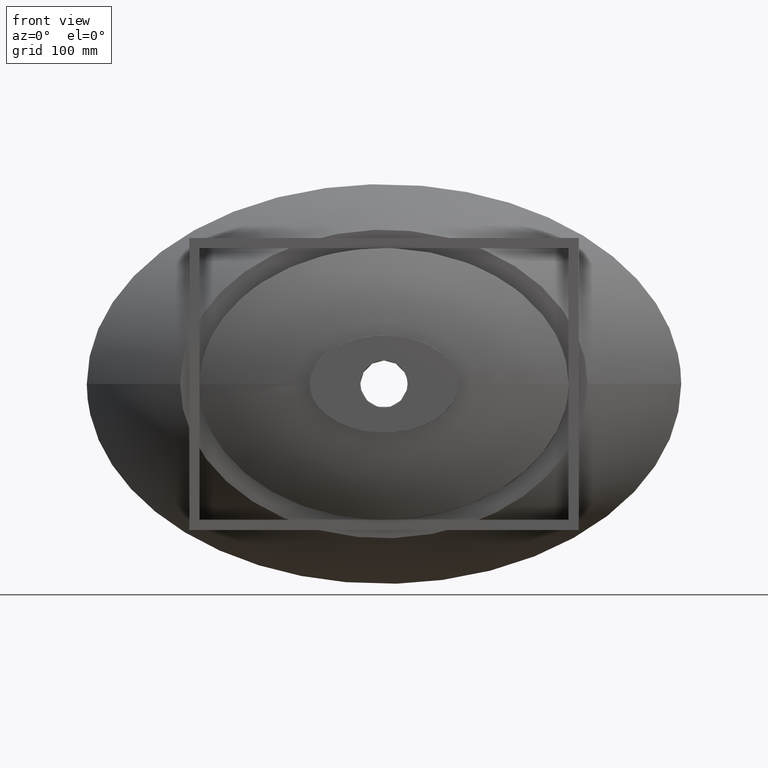
[diagram: clean part render]
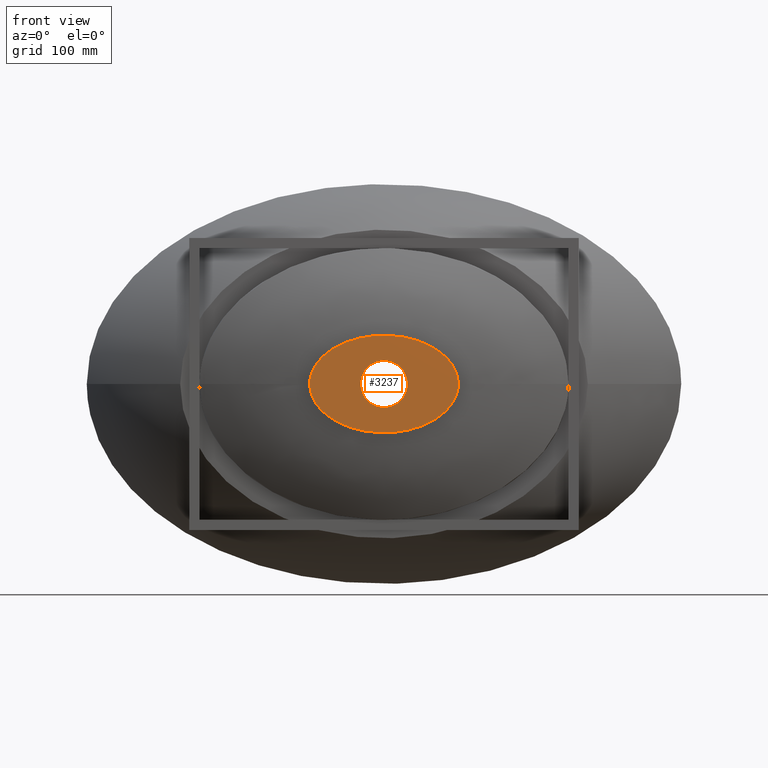
[diagram: same view with one face highlighted and labeled with its STEP entity id]
A machine part, front view. The second image highlights one B-rep face of the part: STEP entity #3237.
In plain terms, the highlighted planar face has unit normal (0, -1, 0).
Its self-contained STEP definition (entity closure, byte-faithful):
#157 = FACE_BOUND ( 'NONE', #1051, .T. ) ;
#325 = VERTEX_POINT ( 'NONE', #3638 ) ;
#419 = DIRECTION ( 'NONE',  ( -1.000000000000000000, -5.607186993056346800E-016, 4.763918636678732000E-017 ) ) ;
#421 = PLANE ( 'NONE',  #1300 ) ;
#432 = CARTESIAN_POINT ( 'NONE',  ( -23.00000000000000000, -144.9999999999999700, -6.586528197849439400E-015 ) ) ;
#454 = DIRECTION ( 'NONE',  ( 5.607186993056346800E-016, -1.000000000000000000, 0.0000000000000000000 ) ) ;
#526 = VERTEX_POINT ( 'NONE', #3667 ) ;
#697 = EDGE_CURVE ( 'NONE', #325, #917, #2055, .T. ) ;
#765 = VERTEX_POINT ( 'NONE', #2791 ) ;
#917 = VERTEX_POINT ( 'NONE', #2893 ) ;
#941 = B_SPLINE_CURVE_WITH_KNOTS ( 'NONE', 3,
 ( #2860, #2836, #2823, #2821, #2818, #2813, #2809, #2806, #2803, #2800, #2797, #2792, #2790, #2787, #2784, #2781, #2776 ),
 .UNSPECIFIED., .F., .F.,
 ( 4, 1, 1, 1, 1, 1, 1, 1, 1, 1, 1, 1, 1, 1, 4 ),
 ( 0.5000000000000008900, 0.5416666666647502700, 0.5833333333315911000, 0.6249999999984320300, 0.6666666666652729700, 0.7083333333321136800, 0.7499999999999285000, 0.7916666666657955500, 0.8333333333326364800, 0.8749999999994773100, 0.9166666666663181300, 0.9583333333331591800, 0.9916666666666318400, 0.9937499999999739300, 1.000000000000000000 ),
 .UNSPECIFIED. ) ;
#944 = EDGE_CURVE ( 'NONE', #526, #765, #2669, .T. ) ;
#1051 = EDGE_LOOP ( 'NONE', ( #1983, #1254 ) ) ;
#1254 = ORIENTED_EDGE ( 'NONE', *, *, #2126, .F. ) ;
#1300 = AXIS2_PLACEMENT_3D ( 'NONE', #432, #454, #419 ) ;
#1685 = CARTESIAN_POINT ( 'NONE',  ( -72.50000000000000000, -145.0000000000000000, 0.6250504549477627900 ) ) ;
#1824 = ORIENTED_EDGE ( 'NONE', *, *, #1934, .T. ) ;
#1934 = EDGE_CURVE ( 'NONE', #917, #325, #2808, .T. ) ;
#1983 = ORIENTED_EDGE ( 'NONE', *, *, #944, .F. ) ;
#2023 = CARTESIAN_POINT ( 'NONE',  ( -72.47446810728392600, -145.0000000000000000, 1.458451061544785200 ) ) ;
#2025 = CARTESIAN_POINT ( 'NONE',  ( -72.50000000000000000, -145.0000000000000000, -4.228388472693467300E-015 ) ) ;
#2055 = B_SPLINE_CURVE_WITH_KNOTS ( 'NONE', 3,
 ( #3016, #3025, #3039, #2956, #2952, #3040, #2951, #2948, #2945, #2943, #2939, #2926, #2932, #2911, #2906, #2931, #2905 ),
 .UNSPECIFIED., .F., .F.,
 ( 4, 1, 1, 1, 1, 1, 1, 1, 1, 1, 1, 1, 1, 1, 4 ),
 ( 0.0000000000000000000, 0.006249999999973968200, 0.008333333333298475700, 0.04166666666649249100, 0.08333333333298509300, 0.1249999999994777000, 0.1666666666659700800, 0.2083333333324626800, 0.2499999999989551700, 0.2916666666654476600, 0.3333333333319402600, 0.3749999999984328100, 0.4166666666649252400, 0.4583333333314178500, 0.5000000000000018900 ),
 .UNSPECIFIED. ) ;
#2087 = CARTESIAN_POINT ( 'NONE',  ( -72.17867248968364900, -145.0000000000000000, 5.620241344210579200 ) ) ;
#2091 = CARTESIAN_POINT ( 'NONE',  ( -63.55359882152487900, -145.0000000000000000, 23.95946813404481900 ) ) ;
#2096 = CARTESIAN_POINT ( 'NONE',  ( -51.86703411855976500, -144.9999999999999700, 33.98184993974604900 ) ) ;
#2105 = CARTESIAN_POINT ( 'NONE',  ( -70.31492215243578400, -144.9999999999999700, 13.26490636796133100 ) ) ;
#2111 = CARTESIAN_POINT ( 'NONE',  ( -36.56971452038421700, -144.9999999999999700, 41.63856474513698900 ) ) ;
#2126 = EDGE_CURVE ( 'NONE', #765, #526, #941, .T. ) ;
#2190 = CARTESIAN_POINT ( 'NONE',  ( -4.985635927538811800E-015, -145.0000000000000300, 48.05759305931623300 ) ) ;
#2228 = CARTESIAN_POINT ( 'NONE',  ( -19.08048757208981900, -144.9999999999999700, 46.38481388136756300 ) ) ;
#2231 = CARTESIAN_POINT ( 'NONE',  ( 51.86703411855974400, -145.0000000000000000, 33.98184993974606300 ) ) ;
#2244 = CARTESIAN_POINT ( 'NONE',  ( 72.49999999999998600, -144.9999999999999700, -2.003483254611170500E-010 ) ) ;
#2247 = CARTESIAN_POINT ( 'NONE',  ( 36.56971452038421000, -145.0000000000000000, 41.63856474513701000 ) ) ;
#2256 = CARTESIAN_POINT ( 'NONE',  ( 63.55359882152489300, -145.0000000000000000, 23.95946813404481500 ) ) ;
#2263 = CARTESIAN_POINT ( 'NONE',  ( 19.08048757208978700, -145.0000000000000000, 46.38481388136754200 ) ) ;
#2296 = CARTESIAN_POINT ( 'NONE',  ( 70.79787381905050800, -144.9999999999999400, 12.50100909876383800 ) ) ;
#2519 = CARTESIAN_POINT ( 'NONE',  ( 72.50000000004261800, -144.9999999999999700, 4.167003032776340100 ) ) ;
#2669 = B_SPLINE_CURVE_WITH_KNOTS ( 'NONE', 3,
 ( #2770, #2766, #2764, #2763, #2760, #2759, #2754, #2753, #2742, #2729, #2726, #2721, #2719, #2714, #2712, #2708, #2706 ),
 .UNSPECIFIED., .F., .F.,
 ( 4, 1, 1, 1, 1, 1, 1, 1, 1, 1, 1, 1, 1, 1, 4 ),
 ( 0.0000000000000000000, 0.006249999999973956100, 0.008333333333298460100, 0.04166666666649240800, 0.08333333333298492700, 0.1249999999994774500, 0.1666666666659697400, 0.2083333333324622600, 0.2499999999989546700, 0.2916666666654470500, 0.3333333333319396000, 0.3749999999984320300, 0.4166666666649244100, 0.4583333333314169600, 0.5000000000000008900 ),
 .UNSPECIFIED. ) ;
#2706 = CARTESIAN_POINT ( 'NONE',  ( 23.00000000000001400, -145.0000000000000300, -1.022849428229522600E-010 ) ) ;
#2708 = CARTESIAN_POINT ( 'NONE',  ( 22.99999999998553000, -145.0000000000000300, -2.039132844023420400 ) ) ;
#2712 = CARTESIAN_POINT ( 'NONE',  ( 22.42234419969895500, -145.0000000000000000, -6.117398531857881800 ) ) ;
#2714 = CARTESIAN_POINT ( 'NONE',  ( 20.06579618222135500, -144.9999999999999700, -11.76226989751438600 ) ) ;
#2719 = CARTESIAN_POINT ( 'NONE',  ( 16.46208693124019700, -144.9999999999999700, -16.46208693124018300 ) ) ;
#2721 = CARTESIAN_POINT ( 'NONE',  ( 11.76226989751440200, -145.0000000000000000, -20.06579618222134400 ) ) ;
#2726 = CARTESIAN_POINT ( 'NONE',  ( 6.117398531763485400, -145.0000000000000000, -22.42234419973835500 ) ) ;
#2729 = CARTESIAN_POINT ( 'NONE',  ( 8.673617379884035500E-015, -145.0000000000000000, -23.28882790013081900 ) ) ;
#2742 = CARTESIAN_POINT ( 'NONE',  ( -6.117398531763469400, -145.0000000000000000, -22.42234419973835500 ) ) ;
#2753 = CARTESIAN_POINT ( 'NONE',  ( -11.76226989751438300, -145.0000000000000300, -20.06579618222134800 ) ) ;
#2754 = CARTESIAN_POINT ( 'NONE',  ( -16.46208693124017900, -145.0000000000000300, -16.46208693124019700 ) ) ;
#2759 = CARTESIAN_POINT ( 'NONE',  ( -20.06579618222134400, -144.9999999999999700, -11.76226989751440800 ) ) ;
#2760 = CARTESIAN_POINT ( 'NONE',  ( -22.26524099857055500, -144.9999999999999700, -6.493723289480213300 ) ) ;
#2763 = CARTESIAN_POINT ( 'NONE',  ( -22.89145991336858900, -144.9999999999999100, -2.750466703463509500 ) ) ;
#2764 = CARTESIAN_POINT ( 'NONE',  ( -22.99133516299607600, -144.9999999999999700, -0.7136964953724153100 ) ) ;
#2766 = CARTESIAN_POINT ( 'NONE',  ( -23.00000000000000000, -144.9999999999999700, -0.3058699265881849000 ) ) ;
#2770 = CARTESIAN_POINT ( 'NONE',  ( -23.00000000000000000, -144.9999999999999700, -6.586528197849439400E-015 ) ) ;
#2776 = CARTESIAN_POINT ( 'NONE',  ( -23.00000000000000000, -144.9999999999999700, -6.586528197849439400E-015 ) ) ;
#2781 = CARTESIAN_POINT ( 'NONE',  ( -23.00000000000000000, -144.9999999999999700, 0.3058699265881663100 ) ) ;
#2784 = CARTESIAN_POINT ( 'NONE',  ( -22.99133516299607300, -144.9999999999999700, 0.7136964953723967700 ) ) ;
#2787 = CARTESIAN_POINT ( 'NONE',  ( -22.89145991336858900, -144.9999999999999700, 2.750466703463491800 ) ) ;
#2790 = CARTESIAN_POINT ( 'NONE',  ( -22.26524099857056200, -145.0000000000000000, 6.493723289480199100 ) ) ;
#2791 = CARTESIAN_POINT ( 'NONE',  ( 23.00000000000001400, -145.0000000000000300, -1.022849428229522600E-010 ) ) ;
#2792 = CARTESIAN_POINT ( 'NONE',  ( -20.06579618222135200, -145.0000000000000000, 11.76226989751439200 ) ) ;
#2797 = CARTESIAN_POINT ( 'NONE',  ( -16.46208693124019700, -145.0000000000000000, 16.46208693124019000 ) ) ;
#2800 = CARTESIAN_POINT ( 'NONE',  ( -11.76226989751440000, -145.0000000000000000, 20.06579618222135200 ) ) ;
#2803 = CARTESIAN_POINT ( 'NONE',  ( -6.117398531763480900, -144.9999999999999700, 22.42234419973835500 ) ) ;
#2806 = CARTESIAN_POINT ( 'NONE',  ( 3.035766082959412400E-015, -144.9999999999999400, 23.28882790013082300 ) ) ;
#2808 = B_SPLINE_CURVE_WITH_KNOTS ( 'NONE', 3,
 ( #2244, #2519, #2296, #2256, #2231, #2247, #2263, #2190, #2228, #2111, #2096, #2091, #2105, #2087, #2023, #1685, #2025 ),
 .UNSPECIFIED., .F., .F.,
 ( 4, 1, 1, 1, 1, 1, 1, 1, 1, 1, 1, 1, 1, 1, 4 ),
 ( 0.5000000000000018900, 0.5416666666647511600, 0.5833333333315918700, 0.6249999999984328100, 0.6666666666652736300, 0.7083333333321142300, 0.7499999999999290600, 0.7916666666657958800, 0.8333333333326368200, 0.8749999999994775300, 0.9166666666663183500, 0.9583333333331591800, 0.9916666666666318400, 0.9937499999999739300, 1.000000000000000000 ),
 .UNSPECIFIED. ) ;
#2809 = CARTESIAN_POINT ( 'NONE',  ( 6.117398531763474700, -144.9999999999999400, 22.42234419973836200 ) ) ;
#2813 = CARTESIAN_POINT ( 'NONE',  ( 11.76226989751439200, -144.9999999999999700, 20.06579618222136200 ) ) ;
#2818 = CARTESIAN_POINT ( 'NONE',  ( 16.46208693124019000, -144.9999999999999700, 16.46208693124020400 ) ) ;
#2821 = CARTESIAN_POINT ( 'NONE',  ( 20.06579618222135200, -145.0000000000000000, 11.76226989751440200 ) ) ;
#2823 = CARTESIAN_POINT ( 'NONE',  ( 22.42234419977778300, -145.0000000000000000, 6.117398531669072900 ) ) ;
#2836 = CARTESIAN_POINT ( 'NONE',  ( 23.00000000001449900, -145.0000000000000300, 2.039132843818899100 ) ) ;
#2860 = CARTESIAN_POINT ( 'NONE',  ( 23.00000000000001400, -145.0000000000000300, -1.022849428229522600E-010 ) ) ;
#2893 = CARTESIAN_POINT ( 'NONE',  ( 72.49999999999998600, -144.9999999999999700, -2.003483254611170500E-010 ) ) ;
#2905 = CARTESIAN_POINT ( 'NONE',  ( 72.49999999999998600, -144.9999999999999700, -2.003483254611170500E-010 ) ) ;
#2906 = CARTESIAN_POINT ( 'NONE',  ( 70.79787381880831300, -145.0000000000000300, -12.50100909914694800 ) ) ;
#2911 = CARTESIAN_POINT ( 'NONE',  ( 63.55359882152487900, -144.9999999999999700, -23.95946813404481900 ) ) ;
#2924 = ORIENTED_EDGE ( 'NONE', *, *, #697, .T. ) ;
#2926 = CARTESIAN_POINT ( 'NONE',  ( 36.56971452038418100, -145.0000000000000000, -41.63856474513701000 ) ) ;
#2931 = CARTESIAN_POINT ( 'NONE',  ( 72.49999999995735300, -144.9999999999999700, -4.167003033193925200 ) ) ;
#2932 = CARTESIAN_POINT ( 'NONE',  ( 51.86703411855975100, -145.0000000000000000, -33.98184993974606300 ) ) ;
#2939 = CARTESIAN_POINT ( 'NONE',  ( 19.08048757208979800, -145.0000000000000000, -46.38481388136756300 ) ) ;
#2943 = CARTESIAN_POINT ( 'NONE',  ( -1.554813677979993700E-014, -144.9999999999999700, -48.05759305931620400 ) ) ;
#2945 = CARTESIAN_POINT ( 'NONE',  ( -19.08048757208983700, -145.0000000000000300, -46.38481388136757000 ) ) ;
#2948 = CARTESIAN_POINT ( 'NONE',  ( -36.56971452038421700, -145.0000000000000300, -41.63856474513700300 ) ) ;
#2951 = CARTESIAN_POINT ( 'NONE',  ( -51.86703411855981500, -144.9999999999999700, -33.98184993974606300 ) ) ;
#2952 = CARTESIAN_POINT ( 'NONE',  ( -70.31492215243578400, -144.9999999999999700, -13.26490636796133400 ) ) ;
#2956 = CARTESIAN_POINT ( 'NONE',  ( -72.17867248968363500, -144.9999999999999700, -5.620241344210597000 ) ) ;
#3016 = CARTESIAN_POINT ( 'NONE',  ( -72.50000000000000000, -145.0000000000000000, -4.228388472693467300E-015 ) ) ;
#3025 = CARTESIAN_POINT ( 'NONE',  ( -72.50000000000000000, -145.0000000000000000, -0.6250504549477823300 ) ) ;
#3039 = CARTESIAN_POINT ( 'NONE',  ( -72.47446810728392600, -145.0000000000000000, -1.458451061544804700 ) ) ;
#3040 = CARTESIAN_POINT ( 'NONE',  ( -63.55359882152489300, -144.9999999999999700, -23.95946813404481900 ) ) ;
#3103 = EDGE_LOOP ( 'NONE', ( #2924, #1824 ) ) ;
#3237 = ADVANCED_FACE ( 'NONE', ( #157, #4014 ), #421, .T. ) ;
#3638 = CARTESIAN_POINT ( 'NONE',  ( -72.50000000000000000, -145.0000000000000000, -4.228388472693467300E-015 ) ) ;
#3667 = CARTESIAN_POINT ( 'NONE',  ( -23.00000000000000000, -144.9999999999999700, -6.586528197849439400E-015 ) ) ;
#4014 = FACE_OUTER_BOUND ( 'NONE', #3103, .T. ) ;